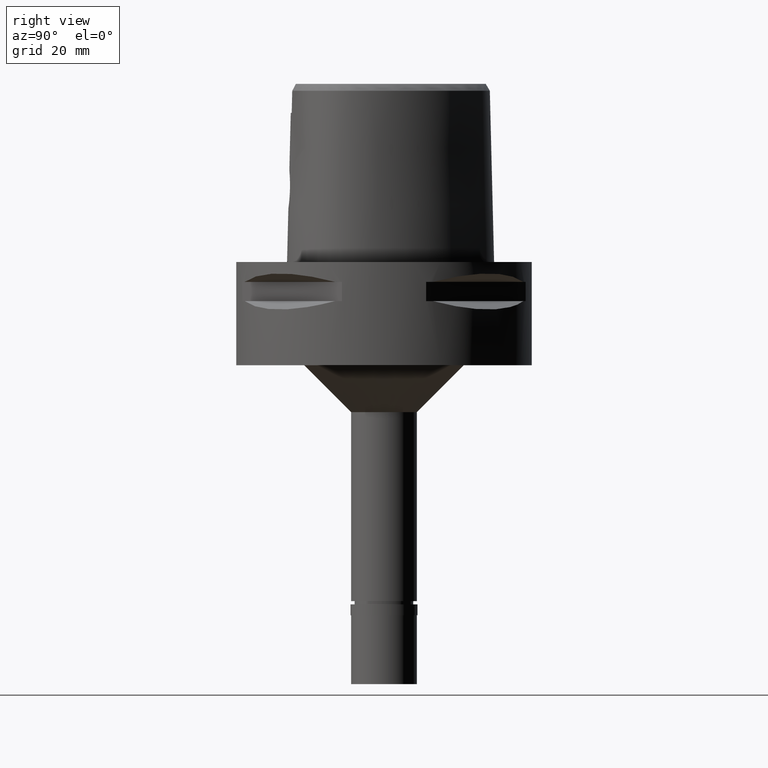
[diagram: clean part render]
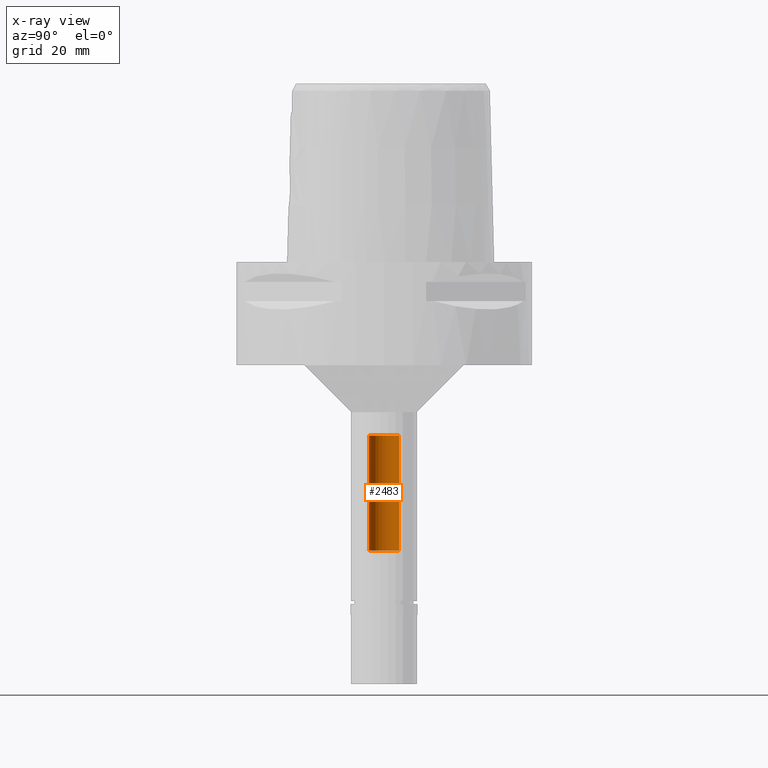
[diagram: x-ray — body ghosted, one internal face saturated and labeled with its STEP entity id]
A machine part, right view, then the same camera in x-ray: the body is ghosted and one INTERNAL B-rep face — a face not visible from any outside direction — is saturated and labeled: STEP entity #2483.
In plain terms, the highlighted cylindrical surface (edge-blend (fillet) strip) has radius 3.2 mm, axis along (0, 0, -1).
Its self-contained STEP definition (entity closure, byte-faithful):
#546 = DIRECTION ( 'NONE',  ( 0.0000000000000000000, 0.0000000000000000000, 1.000000000000000000 ) ) ;
#810 = VERTEX_POINT ( 'NONE', #3447 ) ;
#862 = CARTESIAN_POINT ( 'NONE',  ( 0.0000000000000000000, 3.200000000000000178, -37.00000000000000000 ) ) ;
#875 = AXIS2_PLACEMENT_3D ( 'NONE', #1881, #3396, #1109 ) ;
#904 = DIRECTION ( 'NONE',  ( 0.0000000000000000000, 0.0000000000000000000, 1.000000000000000000 ) ) ;
#1085 = VERTEX_POINT ( 'NONE', #3869 ) ;
#1109 = DIRECTION ( 'NONE',  ( 0.0000000000000000000, -1.000000000000000000, 0.0000000000000000000 ) ) ;
#1408 = LINE ( 'NONE', #4403, #3171 ) ;
#1661 = DIRECTION ( 'NONE',  ( 0.0000000000000000000, 0.0000000000000000000, -1.000000000000000000 ) ) ;
#1775 = EDGE_LOOP ( 'NONE', ( #4740, #2554, #4853, #2639 ) ) ;
#1881 = CARTESIAN_POINT ( 'NONE',  ( 0.0000000000000000000, 1.277306611510999858E-14, 4.299999999999999822 ) ) ;
#1978 = DIRECTION ( 'NONE',  ( 0.0000000000000000000, 1.000000000000000000, 0.0000000000000000000 ) ) ;
#2060 = DIRECTION ( 'NONE',  ( 0.0000000000000000000, -1.000000000000000000, 0.0000000000000000000 ) ) ;
#2151 = AXIS2_PLACEMENT_3D ( 'NONE', #3523, #904, #1978 ) ;
#2421 = EDGE_CURVE ( 'NONE', #1085, #810, #1408, .T. ) ;
#2483 = ADVANCED_FACE ( 'NONE', ( #3349 ), #3371, .F. ) ;
#2554 = ORIENTED_EDGE ( 'NONE', *, *, #2421, .F. ) ;
#2566 = CARTESIAN_POINT ( 'NONE',  ( 0.0000000000000000000, 3.200000000000000178, -61.50000000000000000 ) ) ;
#2578 = VECTOR ( 'NONE', #546, 1000.000000000000000 ) ;
#2639 = ORIENTED_EDGE ( 'NONE', *, *, #4415, .T. ) ;
#2730 = EDGE_CURVE ( 'NONE', #4578, #810, #3969, .T. ) ;
#3171 = VECTOR ( 'NONE', #3222, 1000.000000000000000 ) ;
#3222 = DIRECTION ( 'NONE',  ( 0.0000000000000000000, 0.0000000000000000000, 1.000000000000000000 ) ) ;
#3223 = CARTESIAN_POINT ( 'NONE',  ( 0.0000000000000000000, 1.277306611510999858E-14, -61.50000000000000000 ) ) ;
#3349 = FACE_OUTER_BOUND ( 'NONE', #1775, .T. ) ;
#3371 = CYLINDRICAL_SURFACE ( 'NONE', #875, 3.200000000000000178 ) ;
#3396 = DIRECTION ( 'NONE',  ( 0.0000000000000000000, 0.0000000000000000000, -1.000000000000000000 ) ) ;
#3447 = CARTESIAN_POINT ( 'NONE',  ( 0.0000000000000000000, -3.200000000000000178, -37.00000000000000000 ) ) ;
#3523 = CARTESIAN_POINT ( 'NONE',  ( 0.0000000000000000000, 1.277306611510999858E-14, -37.00000000000000000 ) ) ;
#3700 = CIRCLE ( 'NONE', #4091, 3.200000000000000178 ) ;
#3831 = CARTESIAN_POINT ( 'NONE',  ( 0.0000000000000000000, 3.200000000000000178, -61.50000000000000000 ) ) ;
#3848 = VERTEX_POINT ( 'NONE', #3831 ) ;
#3869 = CARTESIAN_POINT ( 'NONE',  ( 0.0000000000000000000, -3.200000000000000178, -61.50000000000000000 ) ) ;
#3969 = CIRCLE ( 'NONE', #2151, 3.200000000000000178 ) ;
#4054 = LINE ( 'NONE', #2566, #2578 ) ;
#4091 = AXIS2_PLACEMENT_3D ( 'NONE', #3223, #1661, #2060 ) ;
#4403 = CARTESIAN_POINT ( 'NONE',  ( 0.0000000000000000000, -3.200000000000000178, -61.50000000000000000 ) ) ;
#4415 = EDGE_CURVE ( 'NONE', #3848, #4578, #4054, .T. ) ;
#4578 = VERTEX_POINT ( 'NONE', #862 ) ;
#4740 = ORIENTED_EDGE ( 'NONE', *, *, #2730, .T. ) ;
#4750 = EDGE_CURVE ( 'NONE', #1085, #3848, #3700, .T. ) ;
#4853 = ORIENTED_EDGE ( 'NONE', *, *, #4750, .T. ) ;